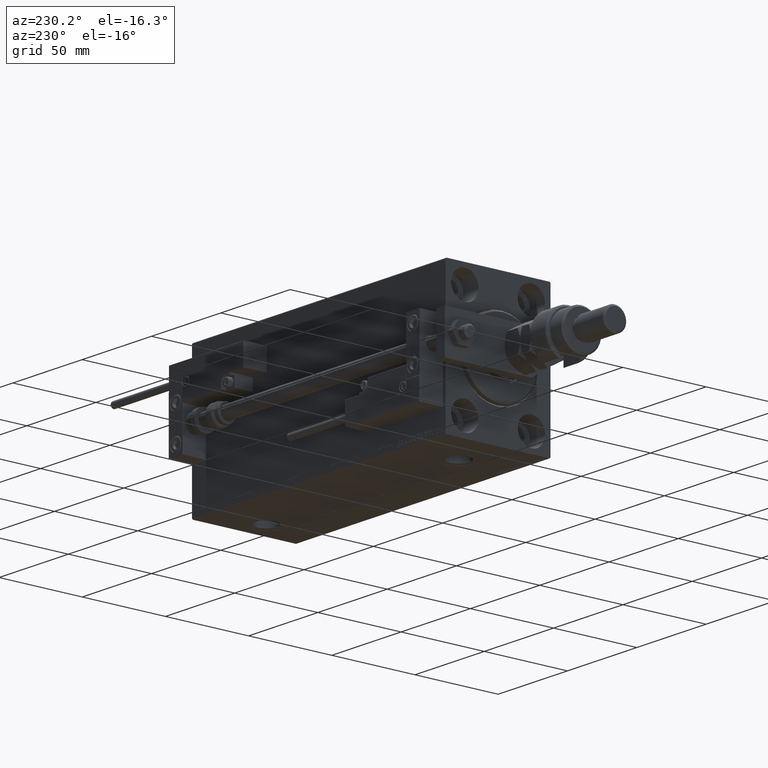
[diagram: clean part render]
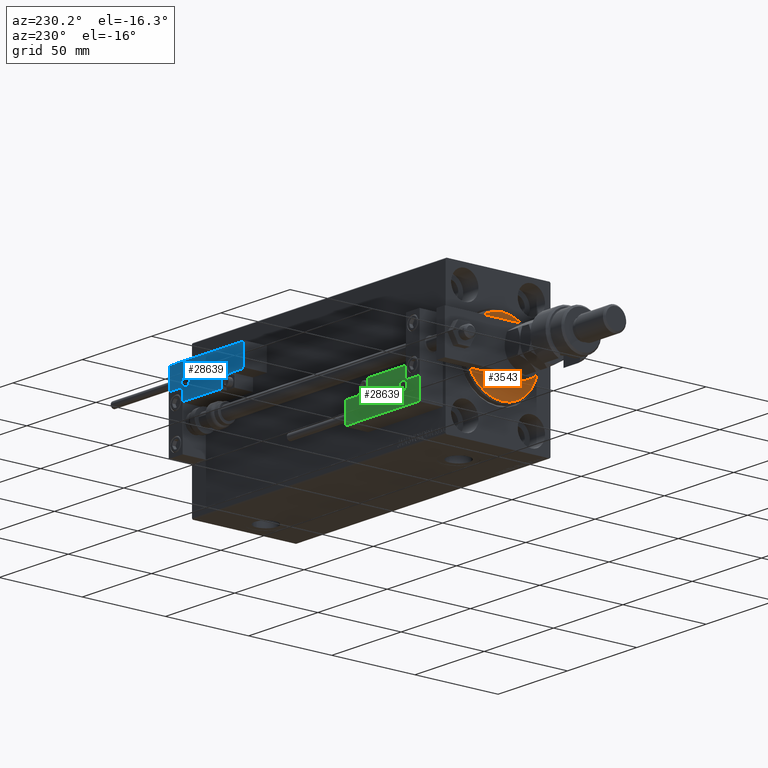
[diagram: same view with three faces highlighted in distinct colors, each labeled with its STEP entity id]
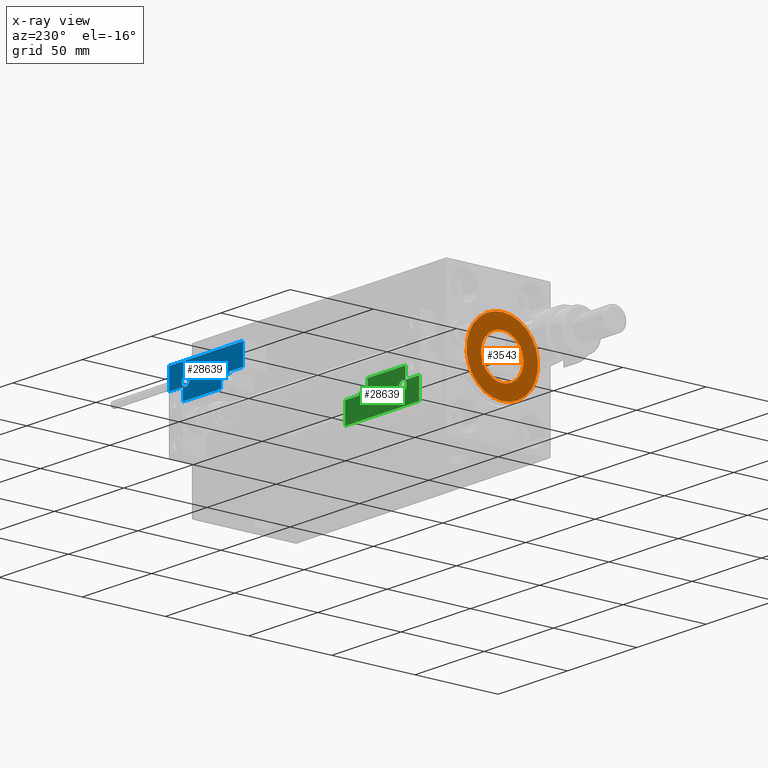
[diagram: x-ray of the same camera — body ghosted, the three highlighted faces saturated]
A machine part, auxiliary view with three faces highlighted in distinct colors.
The next image is the same camera in x-ray (body ghosted, the three faces saturated) — at least one of them is partly hidden behind the body in this view.
Their STEP definitions:

[orange] entity #3543 — the highlighted planar face has unit normal (-1, 0, 0).
#64 = EDGE_CURVE ( 'NONE', #31141, #6807, #23803, .T. ) ;
#101 = EDGE_CURVE ( 'NONE', #36860, #34245, #999, .T. ) ;
#999 = CIRCLE ( 'NONE', #1848, 21.50000000000000355 ) ;
#1848 = AXIS2_PLACEMENT_3D ( 'NONE', #51319, #29358, #21344 ) ;
#3543 = ADVANCED_FACE ( 'NONE', ( #16582, #20451 ), #16320, .T. ) ;
#6229 = AXIS2_PLACEMENT_3D ( 'NONE', #47180, #38392, #43057 ) ;
#6352 = EDGE_LOOP ( 'NONE', ( #14866, #39527 ) ) ;
#6807 = VERTEX_POINT ( 'NONE', #8444 ) ;
#8078 = DIRECTION ( 'NONE',  ( 0.000000000000000000, 0.000000000000000000, -1.000000000000000000 ) ) ;
#8444 = CARTESIAN_POINT ( 'NONE',  ( 3.000000000000000000, 1.561424668912874914E-15, -12.75000000000000000 ) ) ;
#12214 = DIRECTION ( 'NONE',  ( 1.000000000000000000, -0.000000000000000000, 0.000000000000000000 ) ) ;
#13532 = EDGE_CURVE ( 'NONE', #6807, #31141, #45009, .T. ) ;
#14866 = ORIENTED_EDGE ( 'NONE', *, *, #52243, .T. ) ;
#16307 = CARTESIAN_POINT ( 'NONE',  ( 3.000000000000000000, 0.000000000000000000, 0.000000000000000000 ) ) ;
#16320 = PLANE ( 'NONE',  #39732 ) ;
#16582 = FACE_OUTER_BOUND ( 'NONE', #6352, .T. ) ;
#20451 = FACE_BOUND ( 'NONE', #29924, .T. ) ;
#20990 = CARTESIAN_POINT ( 'NONE',  ( 3.000000000000000000, 2.694222958124177598E-15, -21.50000000000000355 ) ) ;
#21344 = DIRECTION ( 'NONE',  ( 0.000000000000000000, 0.000000000000000000, -1.000000000000000000 ) ) ;
#23803 = CIRCLE ( 'NONE', #6229, 12.75000000000000000 ) ;
#25556 = CARTESIAN_POINT ( 'NONE',  ( 3.000000000000000000, 0.000000000000000000, 0.000000000000000000 ) ) ;
#26383 = CIRCLE ( 'NONE', #45670, 21.50000000000000355 ) ;
#26585 = AXIS2_PLACEMENT_3D ( 'NONE', #16307, #32001, #8078 ) ;
#29159 = DIRECTION ( 'NONE',  ( 1.000000000000000000, -0.000000000000000000, 0.000000000000000000 ) ) ;
#29358 = DIRECTION ( 'NONE',  ( 1.000000000000000000, -0.000000000000000000, 0.000000000000000000 ) ) ;
#29924 = EDGE_LOOP ( 'NONE', ( #45979, #38264 ) ) ;
#31141 = VERTEX_POINT ( 'NONE', #35770 ) ;
#32001 = DIRECTION ( 'NONE',  ( -1.000000000000000000, 0.000000000000000000, -0.000000000000000000 ) ) ;
#33376 = DIRECTION ( 'NONE',  ( 0.000000000000000000, 0.000000000000000000, -1.000000000000000000 ) ) ;
#33533 = DIRECTION ( 'NONE',  ( 0.000000000000000000, 0.000000000000000000, -1.000000000000000000 ) ) ;
#34245 = VERTEX_POINT ( 'NONE', #40618 ) ;
#35770 = CARTESIAN_POINT ( 'NONE',  ( 3.000000000000000000, 0.000000000000000000, 12.75000000000000000 ) ) ;
#36860 = VERTEX_POINT ( 'NONE', #20990 ) ;
#38264 = ORIENTED_EDGE ( 'NONE', *, *, #13532, .T. ) ;
#38392 = DIRECTION ( 'NONE',  ( -1.000000000000000000, 0.000000000000000000, -0.000000000000000000 ) ) ;
#39527 = ORIENTED_EDGE ( 'NONE', *, *, #101, .T. ) ;
#39732 = AXIS2_PLACEMENT_3D ( 'NONE', #49887, #12214, #33376 ) ;
#40618 = CARTESIAN_POINT ( 'NONE',  ( 3.000000000000000000, 0.000000000000000000, 21.50000000000000355 ) ) ;
#43057 = DIRECTION ( 'NONE',  ( 0.000000000000000000, 0.000000000000000000, -1.000000000000000000 ) ) ;
#45009 = CIRCLE ( 'NONE', #26585, 12.75000000000000000 ) ;
#45670 = AXIS2_PLACEMENT_3D ( 'NONE', #25556, #29159, #33533 ) ;
#45979 = ORIENTED_EDGE ( 'NONE', *, *, #64, .T. ) ;
#47180 = CARTESIAN_POINT ( 'NONE',  ( 3.000000000000000000, 0.000000000000000000, 0.000000000000000000 ) ) ;
#49887 = CARTESIAN_POINT ( 'NONE',  ( 3.000000000000000000, 0.000000000000000000, 0.000000000000000000 ) ) ;
#51319 = CARTESIAN_POINT ( 'NONE',  ( 3.000000000000000000, 0.000000000000000000, 0.000000000000000000 ) ) ;
#52243 = EDGE_CURVE ( 'NONE', #34245, #36860, #26383, .T. ) ;

[blue] entity #28639 — the highlighted planar face has unit normal (0, 1, -0).
#1590 = LINE ( 'NONE', #30198, #43238 ) ;
#2036 = LINE ( 'NONE', #24009, #14826 ) ;
#2550 = DIRECTION ( 'NONE',  ( -8.006416042969869188E-16, -1.000000000000000000, 0.000000000000000000 ) ) ;
#2574 = DIRECTION ( 'NONE',  ( 0.000000000000000000, 1.000000000000000000, -0.000000000000000000 ) ) ;
#2780 = EDGE_CURVE ( 'NONE', #24443, #29371, #1590, .T. ) ;
#3132 = VERTEX_POINT ( 'NONE', #49399 ) ;
#3549 = ORIENTED_EDGE ( 'NONE', *, *, #52123, .T. ) ;
#3791 = CARTESIAN_POINT ( 'NONE',  ( 26.70000000000006324, 7.300000000000007816, 14.00000000000000000 ) ) ;
#4887 = DIRECTION ( 'NONE',  ( 1.000000000000000000, 0.000000000000000000, 0.000000000000000000 ) ) ;
#5998 = CIRCLE ( 'NONE', #35869, 2.800000000000000266 ) ;
#6550 = ORIENTED_EDGE ( 'NONE', *, *, #41093, .T. ) ;
#7501 = LINE ( 'NONE', #24252, #15464 ) ;
#7969 = VERTEX_POINT ( 'NONE', #40887 ) ;
#9017 = DIRECTION ( 'NONE',  ( 1.000000000000000000, -1.734723475976815230E-16, 0.000000000000000000 ) ) ;
#9315 = LINE ( 'NONE', #30221, #41200 ) ;
#9566 = EDGE_LOOP ( 'NONE', ( #39762, #26937 ) ) ;
#9879 = VERTEX_POINT ( 'NONE', #14209 ) ;
#11299 = CIRCLE ( 'NONE', #42029, 2.800000000000000266 ) ;
#11323 = ORIENTED_EDGE ( 'NONE', *, *, #25292, .T. ) ;
#11393 = DIRECTION ( 'NONE',  ( -1.000000000000000000, 6.424901762877063495E-17, -0.000000000000000000 ) ) ;
#11619 = CARTESIAN_POINT ( 'NONE',  ( 16.69999999999999929, 7.300000000000009592, 14.00000000000000000 ) ) ;
#11813 = EDGE_LOOP ( 'NONE', ( #38227, #11323, #18912, #3549, #18337, #45810, #6550, #39606, #42524, #25564, #37835 ) ) ;
#13995 = DIRECTION ( 'NONE',  ( 0.000000000000000000, -1.000000000000000000, 0.000000000000000000 ) ) ;
#14209 = CARTESIAN_POINT ( 'NONE',  ( -16.69999999999999218, 0.3000000000000032085, 14.00000000000000000 ) ) ;
#14744 = VECTOR ( 'NONE', #40588, 1000.000000000000000 ) ;
#14826 = VECTOR ( 'NONE', #2574, 1000.000000000000000 ) ;
#14895 = VECTOR ( 'NONE', #11393, 1000.000000000000000 ) ;
#15464 = VECTOR ( 'NONE', #45401, 1000.000000000000000 ) ;
#15503 = CARTESIAN_POINT ( 'NONE',  ( -26.99999999999993605, 19.70000000000002061, 14.00000000000000000 ) ) ;
#16398 = VECTOR ( 'NONE', #53021, 1000.000000000000000 ) ;
#16570 = DIRECTION ( 'NONE',  ( 0.000000000000000000, -0.000000000000000000, -1.000000000000000000 ) ) ;
#18264 = AXIS2_PLACEMENT_3D ( 'NONE', #38958, #25798, #4887 ) ;
#18337 = ORIENTED_EDGE ( 'NONE', *, *, #44253, .T. ) ;
#18429 = DIRECTION ( 'NONE',  ( 0.000000000000000000, -0.000000000000000000, -1.000000000000000000 ) ) ;
#18712 = CARTESIAN_POINT ( 'NONE',  ( 26.70000000000006324, 19.70000000000001705, 14.00000000000000000 ) ) ;
#18813 = VERTEX_POINT ( 'NONE', #23827 ) ;
#18912 = ORIENTED_EDGE ( 'NONE', *, *, #33340, .T. ) ;
#19464 = LINE ( 'NONE', #36251, #16398 ) ;
#19683 = CARTESIAN_POINT ( 'NONE',  ( 16.69999999999999929, 6.300000000000003375, 14.00000000000000000 ) ) ;
#20118 = VERTEX_POINT ( 'NONE', #3791 ) ;
#22071 = CARTESIAN_POINT ( 'NONE',  ( 10.69999999999999929, 3.000000000000003109, 14.00000000000000000 ) ) ;
#22190 = FACE_OUTER_BOUND ( 'NONE', #11813, .T. ) ;
#22250 = LINE ( 'NONE', #34362, #49907 ) ;
#22465 = PLANE ( 'NONE',  #18264 ) ;
#22833 = CARTESIAN_POINT ( 'NONE',  ( 13.99999999999999822, 3.000000000000002665, 14.00000000000000000 ) ) ;
#23282 = LINE ( 'NONE', #52697, #14744 ) ;
#23306 = CARTESIAN_POINT ( 'NONE',  ( -17.59999999999994813, 9.800000000000004263, 14.00000000000000000 ) ) ;
#23827 = CARTESIAN_POINT ( 'NONE',  ( -11.99999999999994849, 9.800000000000004263, 14.00000000000000000 ) ) ;
#24009 = CARTESIAN_POINT ( 'NONE',  ( 26.70000000000006324, 20.00000000000001776, 14.00000000000000000 ) ) ;
#24252 = CARTESIAN_POINT ( 'NONE',  ( 27.00000000000006395, 7.300000000000007816, 14.00000000000000000 ) ) ;
#24443 = VERTEX_POINT ( 'NONE', #46505 ) ;
#25292 = EDGE_CURVE ( 'NONE', #9879, #48834, #19464, .T. ) ;
#25564 = ORIENTED_EDGE ( 'NONE', *, *, #28059, .T. ) ;
#25798 = DIRECTION ( 'NONE',  ( -0.000000000000000000, 0.000000000000000000, 1.000000000000000000 ) ) ;
#25832 = CARTESIAN_POINT ( 'NONE',  ( 13.99999999999999822, 6.300000000000001599, 14.00000000000000000 ) ) ;
#26218 = LINE ( 'NONE', #22071, #33396 ) ;
#26937 = ORIENTED_EDGE ( 'NONE', *, *, #49738, .T. ) ;
#27239 = AXIS2_PLACEMENT_3D ( 'NONE', #22833, #18429, #35214 ) ;
#28059 = EDGE_CURVE ( 'NONE', #3132, #24443, #47373, .T. ) ;
#28639 = ADVANCED_FACE ( 'NONE', ( #29927, #22190 ), #22465, .T. ) ;
#28750 = VERTEX_POINT ( 'NONE', #19683 ) ;
#29371 = VERTEX_POINT ( 'NONE', #50084 ) ;
#29927 = FACE_BOUND ( 'NONE', #9566, .T. ) ;
#30184 = VERTEX_POINT ( 'NONE', #11619 ) ;
#30198 = CARTESIAN_POINT ( 'NONE',  ( -16.99999999999999289, 7.300000000000003375, 14.00000000000000000 ) ) ;
#30221 = CARTESIAN_POINT ( 'NONE',  ( 16.69999999999999929, 7.000000000000009770, 14.00000000000000000 ) ) ;
#30501 = EDGE_CURVE ( 'NONE', #28750, #30184, #9315, .T. ) ;
#30574 = VECTOR ( 'NONE', #2550, 1000.000000000000000 ) ;
#31743 = LINE ( 'NONE', #15503, #14895 ) ;
#33072 = EDGE_CURVE ( 'NONE', #47069, #3132, #31743, .T. ) ;
#33340 = EDGE_CURVE ( 'NONE', #48834, #7969, #26218, .T. ) ;
#33396 = VECTOR ( 'NONE', #44306, 1000.000000000000000 ) ;
#34362 = CARTESIAN_POINT ( 'NONE',  ( -16.69999999999999218, 3.252606517456513302E-15, 14.00000000000000000 ) ) ;
#35214 = DIRECTION ( 'NONE',  ( 1.000000000000000000, 0.000000000000000000, 0.000000000000000000 ) ) ;
#35869 = AXIS2_PLACEMENT_3D ( 'NONE', #54259, #16570, #54042 ) ;
#36251 = CARTESIAN_POINT ( 'NONE',  ( 11.00000000000000000, 0.3000000000000032085, 14.00000000000000000 ) ) ;
#37835 = ORIENTED_EDGE ( 'NONE', *, *, #2780, .T. ) ;
#38227 = ORIENTED_EDGE ( 'NONE', *, *, #47409, .T. ) ;
#38958 = CARTESIAN_POINT ( 'NONE',  ( 0.000000000000000000, 0.000000000000000000, 14.00000000000000000 ) ) ;
#39606 = ORIENTED_EDGE ( 'NONE', *, *, #46782, .T. ) ;
#39762 = ORIENTED_EDGE ( 'NONE', *, *, #45489, .T. ) ;
#40201 = DIRECTION ( 'NONE',  ( 0.000000000000000000, -0.000000000000000000, -1.000000000000000000 ) ) ;
#40415 = CIRCLE ( 'NONE', #27239, 3.299999999999997158 ) ;
#40465 = CARTESIAN_POINT ( 'NONE',  ( 10.69999999999999929, 0.3000000000000032085, 14.00000000000000000 ) ) ;
#40588 = DIRECTION ( 'NONE',  ( 1.000000000000000000, 5.782411586589357639E-16, -0.000000000000000000 ) ) ;
#40887 = CARTESIAN_POINT ( 'NONE',  ( 10.69999999999999929, 3.000000000000003109, 14.00000000000000000 ) ) ;
#41093 = EDGE_CURVE ( 'NONE', #30184, #20118, #7501, .T. ) ;
#41200 = VECTOR ( 'NONE', #42299, 1000.000000000000000 ) ;
#42029 = AXIS2_PLACEMENT_3D ( 'NONE', #44316, #40201, #48187 ) ;
#42299 = DIRECTION ( 'NONE',  ( 9.912705577010318647E-16, 1.000000000000000000, 0.000000000000000000 ) ) ;
#42524 = ORIENTED_EDGE ( 'NONE', *, *, #33072, .T. ) ;
#43238 = VECTOR ( 'NONE', #9017, 1000.000000000000000 ) ;
#44253 = EDGE_CURVE ( 'NONE', #52295, #28750, #23282, .T. ) ;
#44306 = DIRECTION ( 'NONE',  ( -0.000000000000000000, 1.000000000000000000, -0.000000000000000000 ) ) ;
#44316 = CARTESIAN_POINT ( 'NONE',  ( -14.79999999999994920, 9.800000000000004263, 14.00000000000000000 ) ) ;
#45401 = DIRECTION ( 'NONE',  ( 1.000000000000000000, -1.734723475976796001E-16, 0.000000000000000000 ) ) ;
#45489 = EDGE_CURVE ( 'NONE', #18813, #52527, #5998, .T. ) ;
#45810 = ORIENTED_EDGE ( 'NONE', *, *, #30501, .T. ) ;
#46505 = CARTESIAN_POINT ( 'NONE',  ( -26.69999999999994600, 7.300000000000005151, 14.00000000000000000 ) ) ;
#46782 = EDGE_CURVE ( 'NONE', #20118, #47069, #2036, .T. ) ;
#47069 = VERTEX_POINT ( 'NONE', #18712 ) ;
#47373 = LINE ( 'NONE', #51520, #30574 ) ;
#47409 = EDGE_CURVE ( 'NONE', #29371, #9879, #22250, .T. ) ;
#48187 = DIRECTION ( 'NONE',  ( 1.000000000000000000, 0.000000000000000000, 0.000000000000000000 ) ) ;
#48834 = VERTEX_POINT ( 'NONE', #40465 ) ;
#49399 = CARTESIAN_POINT ( 'NONE',  ( -26.69999999999993534, 19.70000000000002061, 14.00000000000000000 ) ) ;
#49738 = EDGE_CURVE ( 'NONE', #52527, #18813, #11299, .T. ) ;
#49907 = VECTOR ( 'NONE', #13995, 1000.000000000000000 ) ;
#50084 = CARTESIAN_POINT ( 'NONE',  ( -16.69999999999999218, 7.300000000000003375, 14.00000000000000000 ) ) ;
#51520 = CARTESIAN_POINT ( 'NONE',  ( -26.69999999999994600, 7.000000000000005329, 14.00000000000000000 ) ) ;
#52123 = EDGE_CURVE ( 'NONE', #7969, #52295, #40415, .T. ) ;
#52295 = VERTEX_POINT ( 'NONE', #25832 ) ;
#52527 = VERTEX_POINT ( 'NONE', #23306 ) ;
#52697 = CARTESIAN_POINT ( 'NONE',  ( 17.00000000000000000, 6.300000000000003375, 14.00000000000000000 ) ) ;
#53021 = DIRECTION ( 'NONE',  ( 1.000000000000000000, -0.000000000000000000, 0.000000000000000000 ) ) ;
#54042 = DIRECTION ( 'NONE',  ( 1.000000000000000000, 0.000000000000000000, 0.000000000000000000 ) ) ;
#54259 = CARTESIAN_POINT ( 'NONE',  ( -14.79999999999994920, 9.800000000000004263, 14.00000000000000000 ) ) ;

[green] entity #28639 — the highlighted planar face has unit normal (-0, 1, -0).
#1590 = LINE ( 'NONE', #30198, #43238 ) ;
#2036 = LINE ( 'NONE', #24009, #14826 ) ;
#2550 = DIRECTION ( 'NONE',  ( -8.006416042969869188E-16, -1.000000000000000000, 0.000000000000000000 ) ) ;
#2574 = DIRECTION ( 'NONE',  ( 0.000000000000000000, 1.000000000000000000, -0.000000000000000000 ) ) ;
#2780 = EDGE_CURVE ( 'NONE', #24443, #29371, #1590, .T. ) ;
#3132 = VERTEX_POINT ( 'NONE', #49399 ) ;
#3549 = ORIENTED_EDGE ( 'NONE', *, *, #52123, .T. ) ;
#3791 = CARTESIAN_POINT ( 'NONE',  ( 26.70000000000006324, 7.300000000000007816, 14.00000000000000000 ) ) ;
#4887 = DIRECTION ( 'NONE',  ( 1.000000000000000000, 0.000000000000000000, 0.000000000000000000 ) ) ;
#5998 = CIRCLE ( 'NONE', #35869, 2.800000000000000266 ) ;
#6550 = ORIENTED_EDGE ( 'NONE', *, *, #41093, .T. ) ;
#7501 = LINE ( 'NONE', #24252, #15464 ) ;
#7969 = VERTEX_POINT ( 'NONE', #40887 ) ;
#9017 = DIRECTION ( 'NONE',  ( 1.000000000000000000, -1.734723475976815230E-16, 0.000000000000000000 ) ) ;
#9315 = LINE ( 'NONE', #30221, #41200 ) ;
#9566 = EDGE_LOOP ( 'NONE', ( #39762, #26937 ) ) ;
#9879 = VERTEX_POINT ( 'NONE', #14209 ) ;
#11299 = CIRCLE ( 'NONE', #42029, 2.800000000000000266 ) ;
#11323 = ORIENTED_EDGE ( 'NONE', *, *, #25292, .T. ) ;
#11393 = DIRECTION ( 'NONE',  ( -1.000000000000000000, 6.424901762877063495E-17, -0.000000000000000000 ) ) ;
#11619 = CARTESIAN_POINT ( 'NONE',  ( 16.69999999999999929, 7.300000000000009592, 14.00000000000000000 ) ) ;
#11813 = EDGE_LOOP ( 'NONE', ( #38227, #11323, #18912, #3549, #18337, #45810, #6550, #39606, #42524, #25564, #37835 ) ) ;
#13995 = DIRECTION ( 'NONE',  ( 0.000000000000000000, -1.000000000000000000, 0.000000000000000000 ) ) ;
#14209 = CARTESIAN_POINT ( 'NONE',  ( -16.69999999999999218, 0.3000000000000032085, 14.00000000000000000 ) ) ;
#14744 = VECTOR ( 'NONE', #40588, 1000.000000000000000 ) ;
#14826 = VECTOR ( 'NONE', #2574, 1000.000000000000000 ) ;
#14895 = VECTOR ( 'NONE', #11393, 1000.000000000000000 ) ;
#15464 = VECTOR ( 'NONE', #45401, 1000.000000000000000 ) ;
#15503 = CARTESIAN_POINT ( 'NONE',  ( -26.99999999999993605, 19.70000000000002061, 14.00000000000000000 ) ) ;
#16398 = VECTOR ( 'NONE', #53021, 1000.000000000000000 ) ;
#16570 = DIRECTION ( 'NONE',  ( 0.000000000000000000, -0.000000000000000000, -1.000000000000000000 ) ) ;
#18264 = AXIS2_PLACEMENT_3D ( 'NONE', #38958, #25798, #4887 ) ;
#18337 = ORIENTED_EDGE ( 'NONE', *, *, #44253, .T. ) ;
#18429 = DIRECTION ( 'NONE',  ( 0.000000000000000000, -0.000000000000000000, -1.000000000000000000 ) ) ;
#18712 = CARTESIAN_POINT ( 'NONE',  ( 26.70000000000006324, 19.70000000000001705, 14.00000000000000000 ) ) ;
#18813 = VERTEX_POINT ( 'NONE', #23827 ) ;
#18912 = ORIENTED_EDGE ( 'NONE', *, *, #33340, .T. ) ;
#19464 = LINE ( 'NONE', #36251, #16398 ) ;
#19683 = CARTESIAN_POINT ( 'NONE',  ( 16.69999999999999929, 6.300000000000003375, 14.00000000000000000 ) ) ;
#20118 = VERTEX_POINT ( 'NONE', #3791 ) ;
#22071 = CARTESIAN_POINT ( 'NONE',  ( 10.69999999999999929, 3.000000000000003109, 14.00000000000000000 ) ) ;
#22190 = FACE_OUTER_BOUND ( 'NONE', #11813, .T. ) ;
#22250 = LINE ( 'NONE', #34362, #49907 ) ;
#22465 = PLANE ( 'NONE',  #18264 ) ;
#22833 = CARTESIAN_POINT ( 'NONE',  ( 13.99999999999999822, 3.000000000000002665, 14.00000000000000000 ) ) ;
#23282 = LINE ( 'NONE', #52697, #14744 ) ;
#23306 = CARTESIAN_POINT ( 'NONE',  ( -17.59999999999994813, 9.800000000000004263, 14.00000000000000000 ) ) ;
#23827 = CARTESIAN_POINT ( 'NONE',  ( -11.99999999999994849, 9.800000000000004263, 14.00000000000000000 ) ) ;
#24009 = CARTESIAN_POINT ( 'NONE',  ( 26.70000000000006324, 20.00000000000001776, 14.00000000000000000 ) ) ;
#24252 = CARTESIAN_POINT ( 'NONE',  ( 27.00000000000006395, 7.300000000000007816, 14.00000000000000000 ) ) ;
#24443 = VERTEX_POINT ( 'NONE', #46505 ) ;
#25292 = EDGE_CURVE ( 'NONE', #9879, #48834, #19464, .T. ) ;
#25564 = ORIENTED_EDGE ( 'NONE', *, *, #28059, .T. ) ;
#25798 = DIRECTION ( 'NONE',  ( -0.000000000000000000, 0.000000000000000000, 1.000000000000000000 ) ) ;
#25832 = CARTESIAN_POINT ( 'NONE',  ( 13.99999999999999822, 6.300000000000001599, 14.00000000000000000 ) ) ;
#26218 = LINE ( 'NONE', #22071, #33396 ) ;
#26937 = ORIENTED_EDGE ( 'NONE', *, *, #49738, .T. ) ;
#27239 = AXIS2_PLACEMENT_3D ( 'NONE', #22833, #18429, #35214 ) ;
#28059 = EDGE_CURVE ( 'NONE', #3132, #24443, #47373, .T. ) ;
#28639 = ADVANCED_FACE ( 'NONE', ( #29927, #22190 ), #22465, .T. ) ;
#28750 = VERTEX_POINT ( 'NONE', #19683 ) ;
#29371 = VERTEX_POINT ( 'NONE', #50084 ) ;
#29927 = FACE_BOUND ( 'NONE', #9566, .T. ) ;
#30184 = VERTEX_POINT ( 'NONE', #11619 ) ;
#30198 = CARTESIAN_POINT ( 'NONE',  ( -16.99999999999999289, 7.300000000000003375, 14.00000000000000000 ) ) ;
#30221 = CARTESIAN_POINT ( 'NONE',  ( 16.69999999999999929, 7.000000000000009770, 14.00000000000000000 ) ) ;
#30501 = EDGE_CURVE ( 'NONE', #28750, #30184, #9315, .T. ) ;
#30574 = VECTOR ( 'NONE', #2550, 1000.000000000000000 ) ;
#31743 = LINE ( 'NONE', #15503, #14895 ) ;
#33072 = EDGE_CURVE ( 'NONE', #47069, #3132, #31743, .T. ) ;
#33340 = EDGE_CURVE ( 'NONE', #48834, #7969, #26218, .T. ) ;
#33396 = VECTOR ( 'NONE', #44306, 1000.000000000000000 ) ;
#34362 = CARTESIAN_POINT ( 'NONE',  ( -16.69999999999999218, 3.252606517456513302E-15, 14.00000000000000000 ) ) ;
#35214 = DIRECTION ( 'NONE',  ( 1.000000000000000000, 0.000000000000000000, 0.000000000000000000 ) ) ;
#35869 = AXIS2_PLACEMENT_3D ( 'NONE', #54259, #16570, #54042 ) ;
#36251 = CARTESIAN_POINT ( 'NONE',  ( 11.00000000000000000, 0.3000000000000032085, 14.00000000000000000 ) ) ;
#37835 = ORIENTED_EDGE ( 'NONE', *, *, #2780, .T. ) ;
#38227 = ORIENTED_EDGE ( 'NONE', *, *, #47409, .T. ) ;
#38958 = CARTESIAN_POINT ( 'NONE',  ( 0.000000000000000000, 0.000000000000000000, 14.00000000000000000 ) ) ;
#39606 = ORIENTED_EDGE ( 'NONE', *, *, #46782, .T. ) ;
#39762 = ORIENTED_EDGE ( 'NONE', *, *, #45489, .T. ) ;
#40201 = DIRECTION ( 'NONE',  ( 0.000000000000000000, -0.000000000000000000, -1.000000000000000000 ) ) ;
#40415 = CIRCLE ( 'NONE', #27239, 3.299999999999997158 ) ;
#40465 = CARTESIAN_POINT ( 'NONE',  ( 10.69999999999999929, 0.3000000000000032085, 14.00000000000000000 ) ) ;
#40588 = DIRECTION ( 'NONE',  ( 1.000000000000000000, 5.782411586589357639E-16, -0.000000000000000000 ) ) ;
#40887 = CARTESIAN_POINT ( 'NONE',  ( 10.69999999999999929, 3.000000000000003109, 14.00000000000000000 ) ) ;
#41093 = EDGE_CURVE ( 'NONE', #30184, #20118, #7501, .T. ) ;
#41200 = VECTOR ( 'NONE', #42299, 1000.000000000000000 ) ;
#42029 = AXIS2_PLACEMENT_3D ( 'NONE', #44316, #40201, #48187 ) ;
#42299 = DIRECTION ( 'NONE',  ( 9.912705577010318647E-16, 1.000000000000000000, 0.000000000000000000 ) ) ;
#42524 = ORIENTED_EDGE ( 'NONE', *, *, #33072, .T. ) ;
#43238 = VECTOR ( 'NONE', #9017, 1000.000000000000000 ) ;
#44253 = EDGE_CURVE ( 'NONE', #52295, #28750, #23282, .T. ) ;
#44306 = DIRECTION ( 'NONE',  ( -0.000000000000000000, 1.000000000000000000, -0.000000000000000000 ) ) ;
#44316 = CARTESIAN_POINT ( 'NONE',  ( -14.79999999999994920, 9.800000000000004263, 14.00000000000000000 ) ) ;
#45401 = DIRECTION ( 'NONE',  ( 1.000000000000000000, -1.734723475976796001E-16, 0.000000000000000000 ) ) ;
#45489 = EDGE_CURVE ( 'NONE', #18813, #52527, #5998, .T. ) ;
#45810 = ORIENTED_EDGE ( 'NONE', *, *, #30501, .T. ) ;
#46505 = CARTESIAN_POINT ( 'NONE',  ( -26.69999999999994600, 7.300000000000005151, 14.00000000000000000 ) ) ;
#46782 = EDGE_CURVE ( 'NONE', #20118, #47069, #2036, .T. ) ;
#47069 = VERTEX_POINT ( 'NONE', #18712 ) ;
#47373 = LINE ( 'NONE', #51520, #30574 ) ;
#47409 = EDGE_CURVE ( 'NONE', #29371, #9879, #22250, .T. ) ;
#48187 = DIRECTION ( 'NONE',  ( 1.000000000000000000, 0.000000000000000000, 0.000000000000000000 ) ) ;
#48834 = VERTEX_POINT ( 'NONE', #40465 ) ;
#49399 = CARTESIAN_POINT ( 'NONE',  ( -26.69999999999993534, 19.70000000000002061, 14.00000000000000000 ) ) ;
#49738 = EDGE_CURVE ( 'NONE', #52527, #18813, #11299, .T. ) ;
#49907 = VECTOR ( 'NONE', #13995, 1000.000000000000000 ) ;
#50084 = CARTESIAN_POINT ( 'NONE',  ( -16.69999999999999218, 7.300000000000003375, 14.00000000000000000 ) ) ;
#51520 = CARTESIAN_POINT ( 'NONE',  ( -26.69999999999994600, 7.000000000000005329, 14.00000000000000000 ) ) ;
#52123 = EDGE_CURVE ( 'NONE', #7969, #52295, #40415, .T. ) ;
#52295 = VERTEX_POINT ( 'NONE', #25832 ) ;
#52527 = VERTEX_POINT ( 'NONE', #23306 ) ;
#52697 = CARTESIAN_POINT ( 'NONE',  ( 17.00000000000000000, 6.300000000000003375, 14.00000000000000000 ) ) ;
#53021 = DIRECTION ( 'NONE',  ( 1.000000000000000000, -0.000000000000000000, 0.000000000000000000 ) ) ;
#54042 = DIRECTION ( 'NONE',  ( 1.000000000000000000, 0.000000000000000000, 0.000000000000000000 ) ) ;
#54259 = CARTESIAN_POINT ( 'NONE',  ( -14.79999999999994920, 9.800000000000004263, 14.00000000000000000 ) ) ;